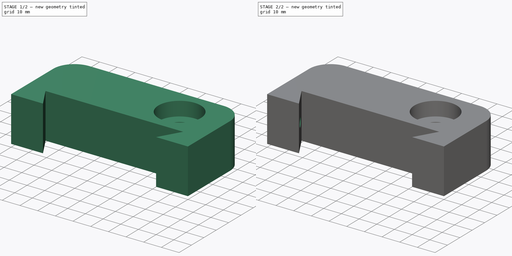
[diagram: build sequence overview — one tinted view per stage of 2, left to right]
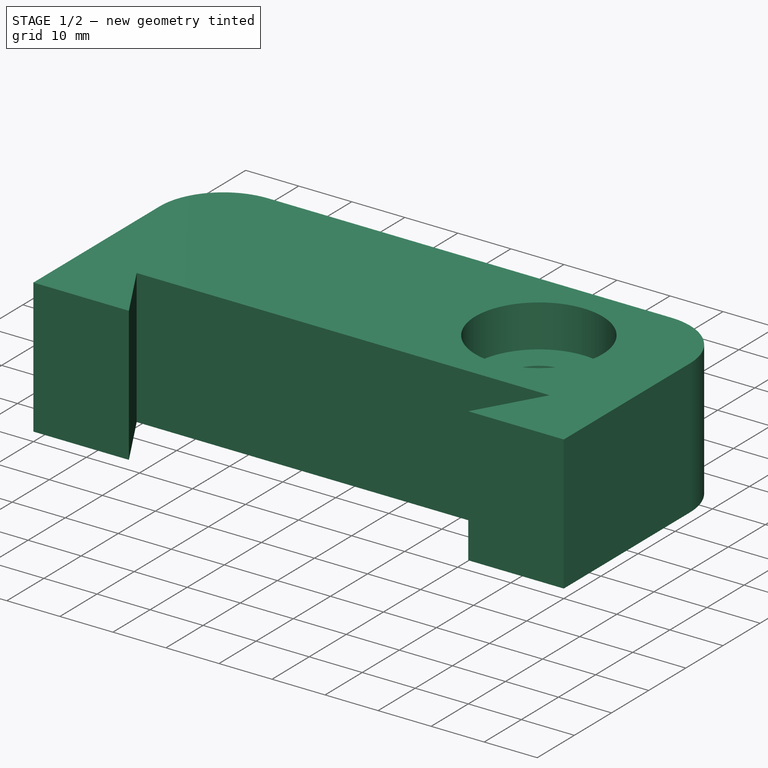
[diagram: stage 1 of 2 — iso view after this stage's code; geometry added in this stage tinted green]
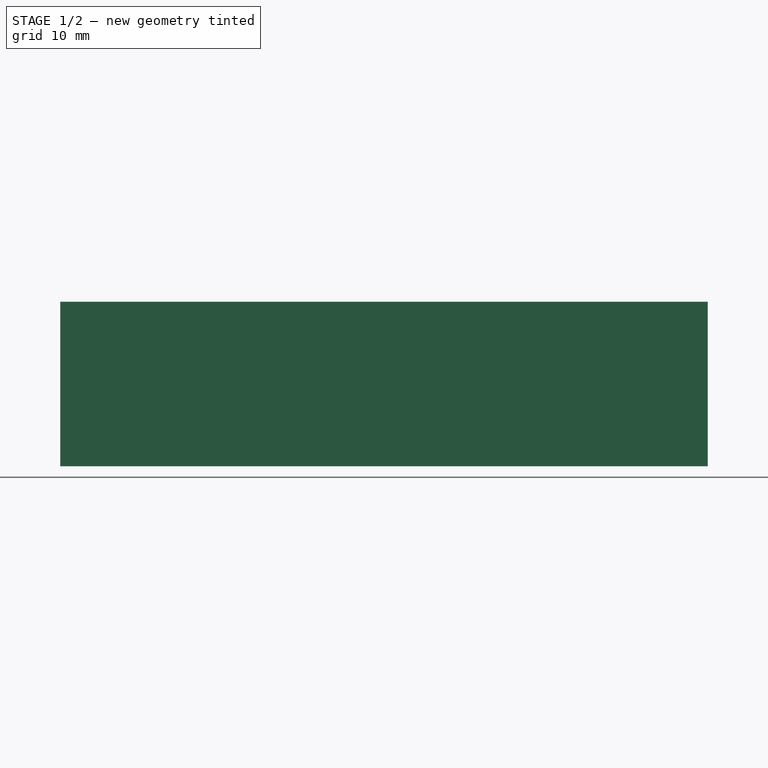
[diagram: stage 1 of 2 — front view after this stage's code; geometry added in this stage tinted green]
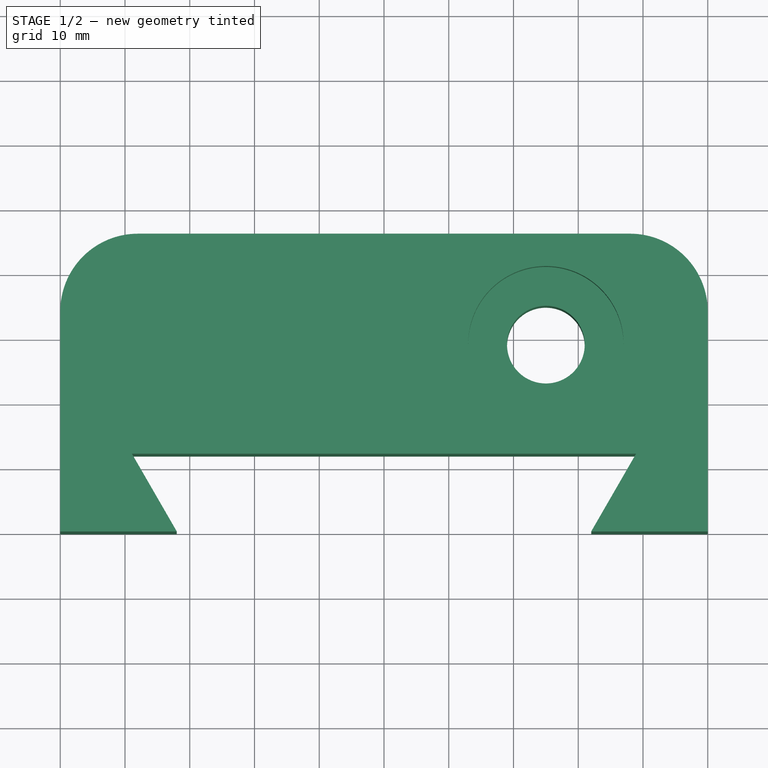
[diagram: stage 1 of 2 — top view after this stage's code; geometry added in this stage tinted green]
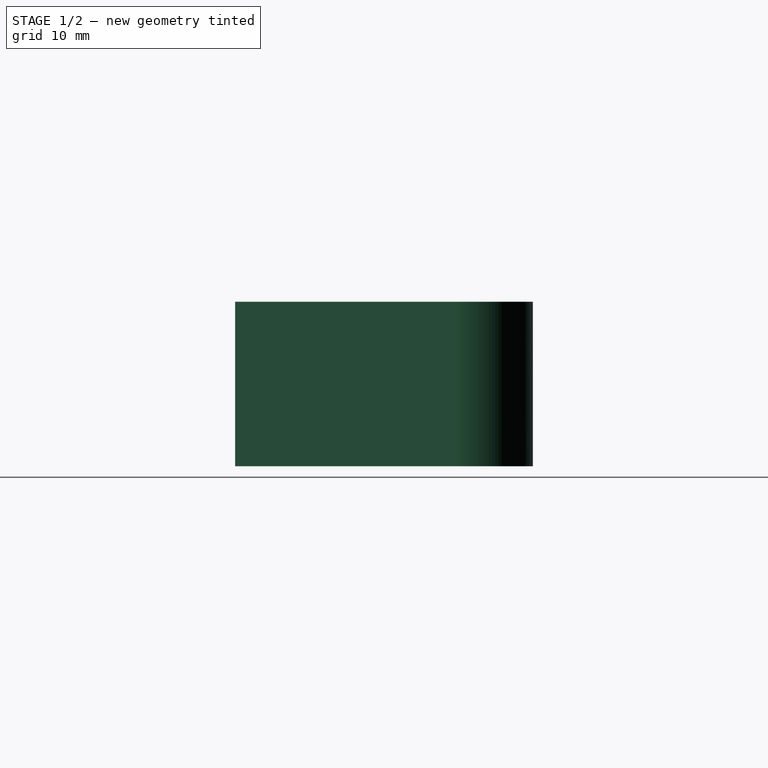
[diagram: stage 1 of 2 — right view after this stage's code; geometry added in this stage tinted green]
FCSTD DOCUMENT  (FreeCAD 0.16R5669 (Git))
Label: Z-Axis-lower-proximity-mount
License: CreativeCommons Attribution-ShareAlike
LicenseURL: http://creativecommons.org/licenses/by-sa/4.0/
objects: Sketcher::SketchObject×4, PartDesign::Pocket×3, PartDesign::Pad×1
note: 12 computed .brp shape members not serialized (recipe doc carries the construction recipe); baked Part::Feature solids carry a one-line shape summary decoded from their .brp

FEATURE [Sketcher::SketchObject] Sketch002  label="wedge"
  sketch-geometry (11):
    g0: LineSegment StartX=-32 StartY=0 StartZ=0 EndX=-38.9282 EndY=12 EndZ=0
    g1: LineSegment StartX=-38.9282 StartY=12 StartZ=0 EndX=38.9282 EndY=12 EndZ=0
    g2: LineSegment StartX=38.9282 StartY=12 StartZ=0 EndX=32 EndY=0 EndZ=0
    g3: LineSegment StartX=-32 StartY=0 StartZ=0 EndX=-50 EndY=0 EndZ=0
    g4: LineSegment StartX=-50 StartY=0 StartZ=0 EndX=-50 EndY=34 EndZ=0
    g5: LineSegment StartX=50 StartY=34 StartZ=0 EndX=50 EndY=0 EndZ=0
    g6: LineSegment StartX=50 StartY=0 StartZ=0 EndX=32 EndY=0 EndZ=0
    g7: ArcOfCircle CenterX=-38 CenterY=34 CenterZ=0 NormalX=0 NormalY=0 NormalZ=1 Radius=12 StartAngle=1.57079 EndAngle=3.14159
    g8: ArcOfCircle CenterX=38 CenterY=34 CenterZ=0 NormalX=0 NormalY=0 NormalZ=1 Radius=12 StartAngle=6.28318 EndAngle=7.85398
    g9: LineSegment StartX=-38 StartY=46 StartZ=0 EndX=38 EndY=46 EndZ=0
    g10: Circle CenterX=25 CenterY=29 CenterZ=0 NormalX=0 NormalY=0 NormalZ=1 Radius=6
  constraints (33):
    c: Coincident(g0,g1)
    c: Horizontal(g1)
    c: DistanceX(g-1,g0) = -32
    c: Angle(g0,g1) = 1.0472
    c: Symmetric(g0,g2,g-2)
    c: Coincident(g1,g2)
    c: Angle(g1,g2) = 1.0472
    c: DistanceY(g2,g1) = 12
    c: Coincident(g3,g4)
    c: Coincident(g5,g6)
    c: Horizontal(g6)
    c: Horizontal(g3)
    c: Vertical(g5)
    c: Vertical(g4)
    c: Symmetric(g4,g5,g-2)
    c: Coincident(g3,g0)
    c: Coincident(g2,g6)
    c: PointOnObject(g5,g-1)
    c: Equal(g7,g8)
    c: Coincident(g5,g8)
    c: Tangent(g8,g5)
    c: Coincident(g4,g7)
    c: Tangent(g4,g7)
    c: Coincident(g8,g9)
    c: Coincident(g9,g7)
    c: Tangent(g7,g9)
    c: Tangent(g9,g8)
    c: DistanceX(g4,g5) = 100
    c: Radius(g8) = 12
    c: DistanceY(g8,g5) = -46
    c: Radius(g10) = 6
    c: DistanceX(g-1,g10) = 25
    c: DistanceY(g-1,g10) = 29
FEATURE [PartDesign::Pad] Pad
  Length = 25.4
  Length2 = 100
  Sketch = -> Sketch002
  Type = 0
FEATURE [Sketcher::SketchObject] Sketch
  Placement = pos=(0,0,25.4) rot=(0,0,1;0rad)
  Support = -> Pad [Face13]
  sketch-geometry (1):
    g0: Circle CenterX=25 CenterY=29 CenterZ=0 NormalX=0 NormalY=0 NormalZ=1 Radius=12
  constraints (3):
    c: Radius(g0) = 12
    c: DistanceX(g-1,g0) = 25
    c: DistanceY(g-1,g0) = 29
FEATURE [PartDesign::Pocket] Pocket
  Length = 8
  Sketch = -> Sketch
  Type = 0
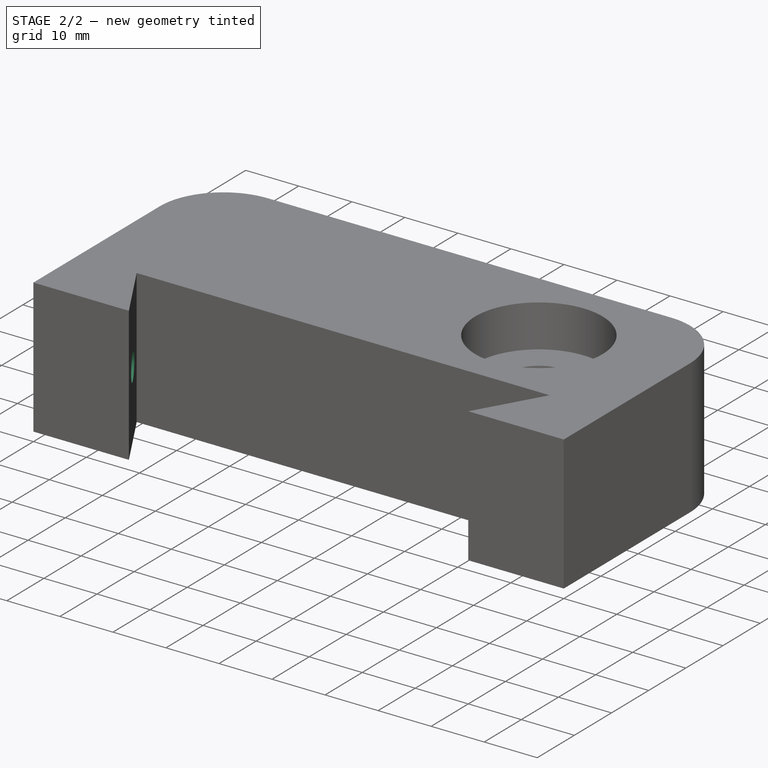
[diagram: stage 2 of 2 — iso view after this stage's code; geometry added in this stage tinted green]
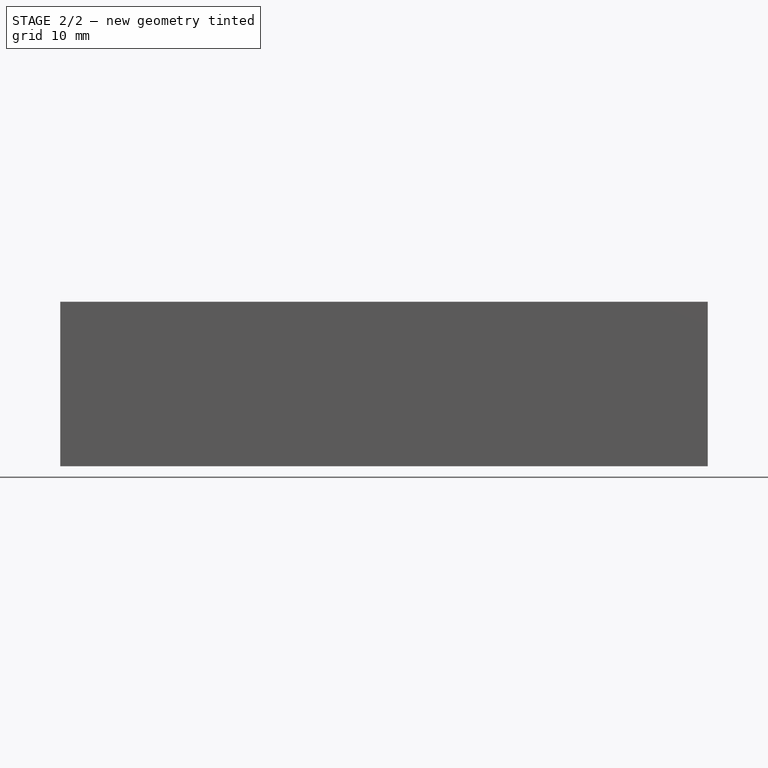
[diagram: stage 2 of 2 — front view after this stage's code; geometry added in this stage tinted green]
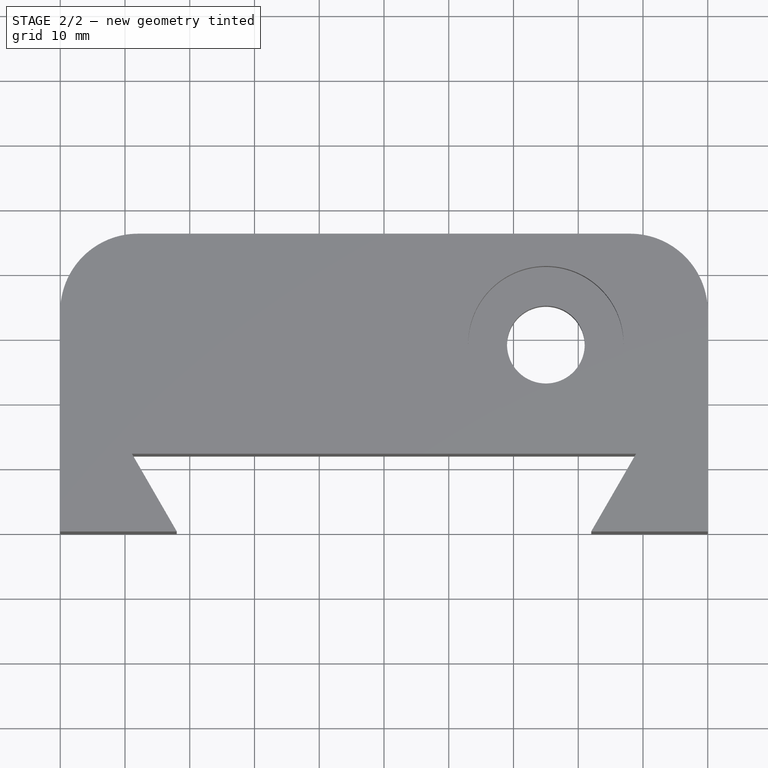
[diagram: stage 2 of 2 — top view after this stage's code; geometry added in this stage tinted green]
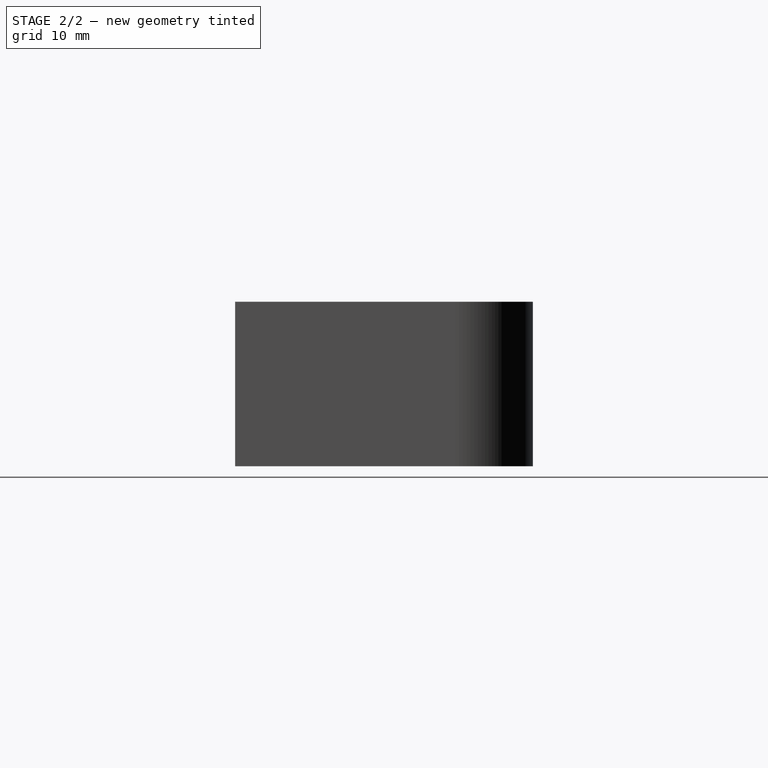
[diagram: stage 2 of 2 — right view after this stage's code; geometry added in this stage tinted green]
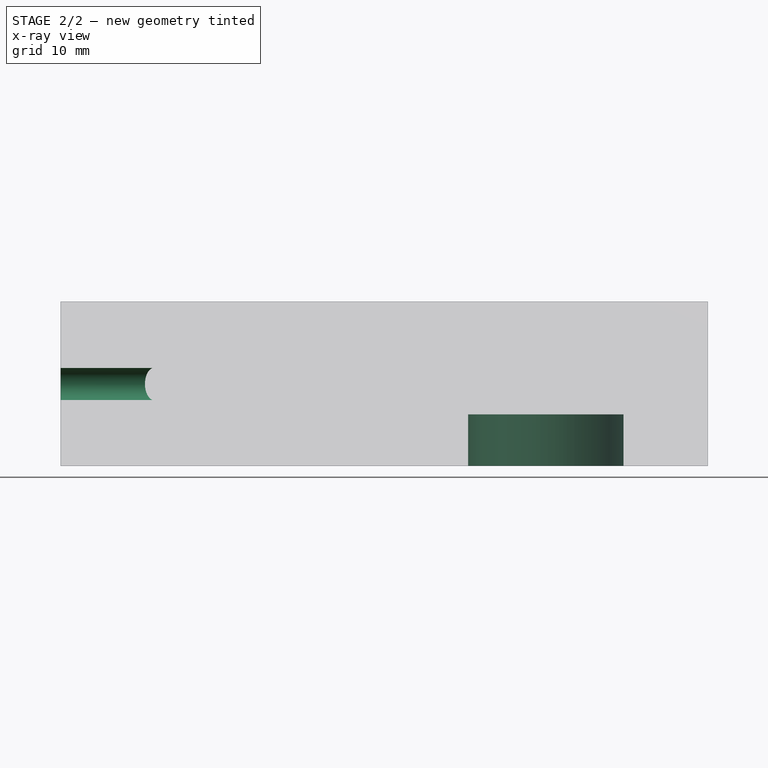
[diagram: stage 2 of 2 — x-ray composite at the front view; earlier geometry ghosted, this stage's added geometry solid]
FEATURE [Sketcher::SketchObject] Sketch003
  Placement = pos=(0,0,0) rot=(1,0,0;3.14159rad)
  Support = -> Pocket [Face4]
  sketch-geometry (1):
    g0: Circle CenterX=25 CenterY=-29 CenterZ=0 NormalX=0 NormalY=0 NormalZ=1 Radius=12
  constraints (3):
    c: Radius(g0) = 12
    c: DistanceX(g-1,g0) = 25
    c: DistanceY(g-1,g0) = -29
FEATURE [PartDesign::Pocket] Pocket001
  Length = 8
  Sketch = -> Sketch003
  Type = 0
FEATURE [Sketcher::SketchObject] Sketch004
  Placement = pos=(-50,0,0) rot=(0.57735,-0.57735,-0.57735;2.0944rad)
  Support = -> Pocket001 [Face3]
  sketch-geometry (1):
    g0: Circle CenterX=-6 CenterY=12.7 CenterZ=0 NormalX=0 NormalY=0 NormalZ=1 Radius=2.5
  constraints (3):
    c: DistanceY(g-1,g0) = 12.7
    c: Radius(g0) = 2.5
    c: DistanceX(g-1,g0) = -6
FEATURE [PartDesign::Pocket] Pocket002
  Length = 16
  Sketch = -> Sketch004
  Type = 0
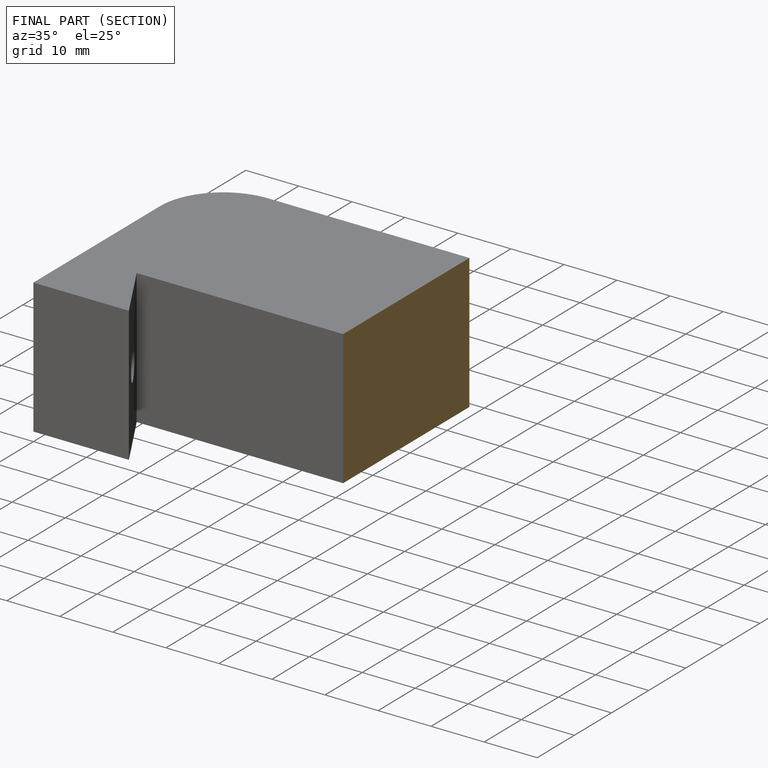
[diagram: finished part — half-section view (interior)]
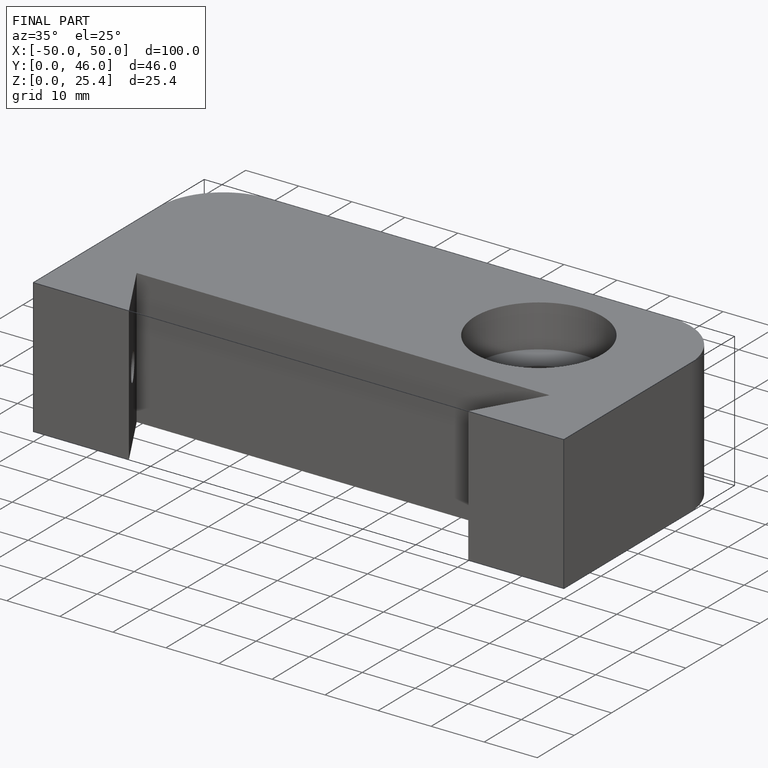
[diagram: finished part — iso view with bounding-box wireframe]
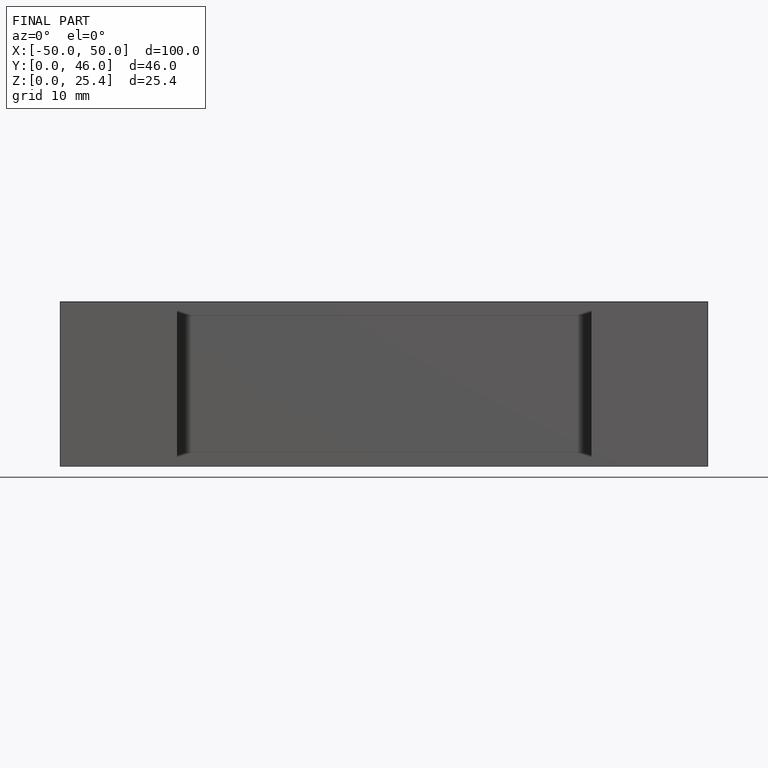
[diagram: finished part — front view with bounding-box wireframe]
